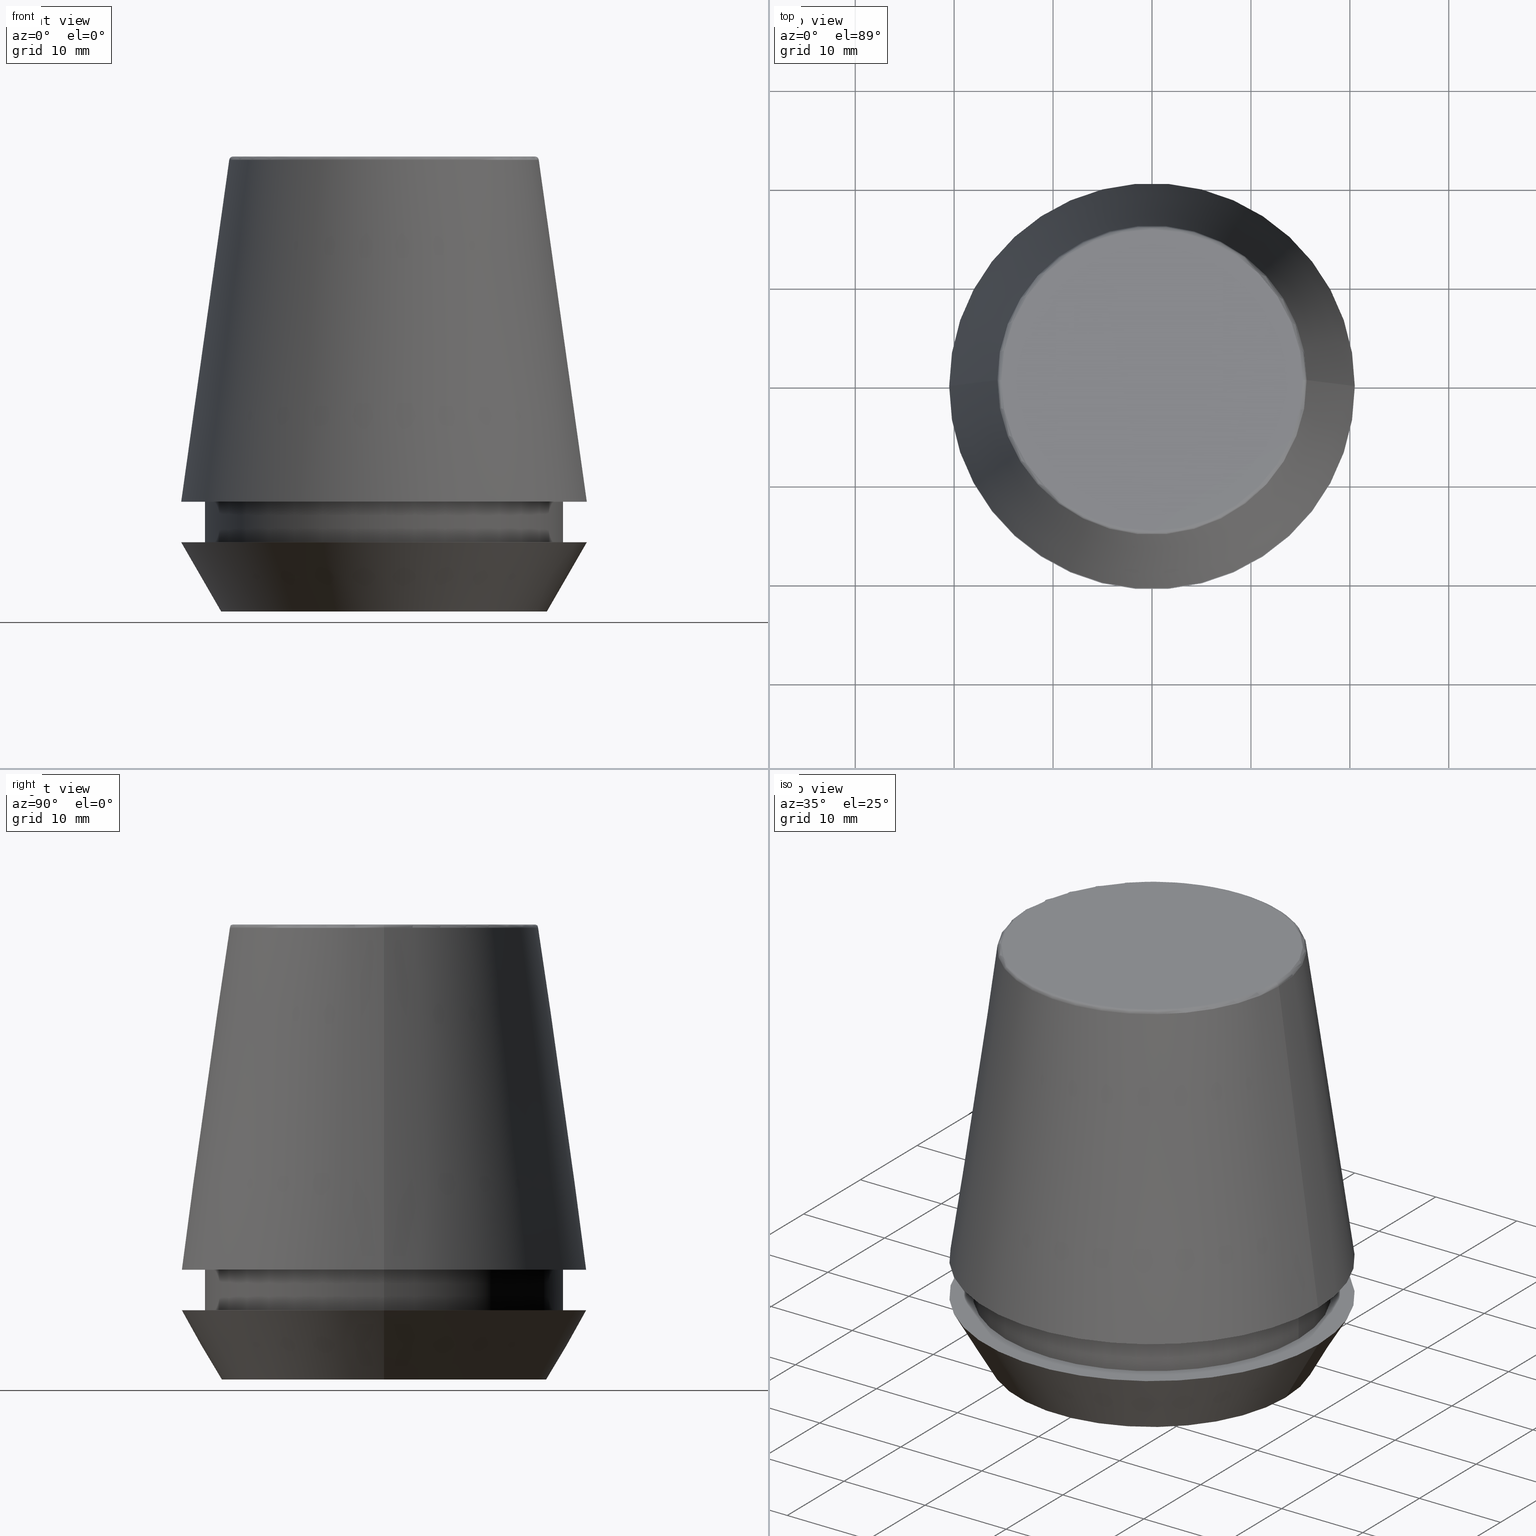
[diagram: canonical four-view strip — front | top / right | iso, engineering-drawing reading convention]
A machine part, canonical four-view strip (front | top / right | iso — engineering-drawing reading convention). The complete STEP part file that produces these views, byte-faithful:
ISO-10303-21;
HEADER;
FILE_DESCRIPTION (( 'STEP AP203' ),
    '1' );
FILE_NAME ('TAP COLLET ER 40G 6.3 X 5.0.STEP',
    '2019-04-10T03:25:51',
    ( '' ),
    ( '' ),
    'SwSTEP 2.0',
    'SolidWorks 2014',
    '' );
FILE_SCHEMA (( 'CONFIG_CONTROL_DESIGN' ));
ENDSEC;

DATA;
#1 = ORIENTED_EDGE ( 'NONE', *, *, #286, .T. ) ;
#2 = CARTESIAN_POINT ( 'NONE',  ( -15.64384277279740400, 0.0000000000000000000, 45.65566924038402900 ) ) ;
#3 = ORIENTED_EDGE ( 'NONE', *, *, #72, .T. ) ;
#4 = EDGE_LOOP ( 'NONE', ( #361, #256 ) ) ;
#5 = CIRCLE ( 'NONE', #306, 0.3999999999999975800 ) ;
#6 = CARTESIAN_POINT ( 'NONE',  ( -18.10000000000000500, 2.216610706456710000E-015, 11.09999999999999800 ) ) ;
#7 = CIRCLE ( 'NONE', #67, 18.10000000000000500 ) ;
#8 = CONICAL_SURFACE ( 'NONE', #11, 20.50032537154048700, 0.1396263401595396200 ) ;
#9 = CIRCLE ( 'NONE', #41, 16.45854811567268100 ) ;
#10 = ORIENTED_EDGE ( 'NONE', *, *, #141, .F. ) ;
#11 = AXIS2_PLACEMENT_3D ( 'NONE', #25, #240, #384 ) ;
#12 = VERTEX_POINT ( 'NONE', #321 ) ;
#13 = ORIENTED_EDGE ( 'NONE', *, *, #161, .T. ) ;
#14 = PRODUCT_RELATED_PRODUCT_CATEGORY ( 'detail', '', ( #124 ) ) ;
#15 = ORIENTED_EDGE ( 'NONE', *, *, #278, .T. ) ;
#16 = CARTESIAN_POINT ( 'NONE',  ( 0.0000000000000000000, 0.0000000000000000000, 11.09999999999999800 ) ) ;
#17 = ORIENTED_EDGE ( 'NONE', *, *, #122, .T. ) ;
#18 = ADVANCED_FACE ( 'NONE', ( #305 ), #185, .F. ) ;
#19 = CARTESIAN_POINT ( 'NONE',  ( 0.0000000000000000000, 0.0000000000000000000, 11.09999999999999800 ) ) ;
#20 = DIRECTION ( 'NONE',  ( 1.000000000000000000, 0.0000000000000000000, 0.0000000000000000000 ) ) ;
#21 = EDGE_CURVE ( 'NONE', #239, #330, #156, .T. ) ;
#22 = VERTEX_POINT ( 'NONE', #147 ) ;
#23 = CARTESIAN_POINT ( 'NONE',  ( 0.0000000000000000000, 0.0000000000000000000, 46.00000000000000000 ) ) ;
#24 = AXIS2_PLACEMENT_3D ( 'NONE', #169, #193, #275 ) ;
#25 = CARTESIAN_POINT ( 'NONE',  ( 0.0000000000000000000, 0.0000000000000000000, 11.09999999999999800 ) ) ;
#26 = PERSON_AND_ORGANIZATION_ROLE ( 'classification_officer' ) ;
#27 = DIRECTION ( 'NONE',  ( 1.000000000000000000, 0.0000000000000000000, 0.0000000000000000000 ) ) ;
#28 = CIRCLE ( 'NONE', #308, 20.50000000000000000 ) ;
#29 = PERSON_AND_ORGANIZATION_ROLE ( 'design_owner' ) ;
#30 = APPROVAL_PERSON_ORGANIZATION ( #377, #215, #271 ) ;
#31 = DIRECTION ( 'NONE',  ( 1.000000000000000000, 0.0000000000000000000, 0.0000000000000000000 ) ) ;
#32 = CONICAL_SURFACE ( 'NONE', #83, 20.50032537154048700, 0.1396263401595396200 ) ;
#33 = DIRECTION ( 'NONE',  ( 1.000000000000000000, 0.0000000000000000000, 0.0000000000000000000 ) ) ;
#34 = FACE_OUTER_BOUND ( 'NONE', #192, .T. ) ;
#35 = VERTEX_POINT ( 'NONE', #317 ) ;
#36 = ORIENTED_EDGE ( 'NONE', *, *, #108, .F. ) ;
#37 = AXIS2_PLACEMENT_3D ( 'NONE', #56, #244, #27 ) ;
#38 = CIRCLE ( 'NONE', #111, 20.50032537154048700 ) ;
#39 = ORIENTED_EDGE ( 'NONE', *, *, #122, .F. ) ;
#40 = CARTESIAN_POINT ( 'NONE',  ( 0.0000000000000000000, 20.50000000000000000, 7.000000000000002700 ) ) ;
#41 = AXIS2_PLACEMENT_3D ( 'NONE', #198, #379, #238 ) ;
#42 = ORIENTED_EDGE ( 'NONE', *, *, #199, .T. ) ;
#43 = ORIENTED_EDGE ( 'NONE', *, *, #199, .F. ) ;
#44 = CARTESIAN_POINT ( 'NONE',  ( 16.45854811567268100, 0.0000000000000000000, 0.0000000000000000000 ) ) ;
#45 = VECTOR ( 'NONE', #299, 1000.000000000000000 ) ;
#46 = ADVANCED_FACE ( 'NONE', ( #349, #88 ), #94, .F. ) ;
#47 = DIRECTION ( 'NONE',  ( 1.000000000000000000, 0.0000000000000000000, 0.0000000000000000000 ) ) ;
#48 = EDGE_CURVE ( 'NONE', #232, #12, #282, .T. ) ;
#49 = DIRECTION ( 'NONE',  ( 1.000000000000000000, 0.0000000000000000000, 0.0000000000000000000 ) ) ;
#50 = PERSON_AND_ORGANIZATION ( #71, #378 ) ;
#51 = VERTEX_POINT ( 'NONE', #6 ) ;
#52 = DIRECTION ( 'NONE',  ( 0.0000000000000000000, -1.000000000000000000, 0.0000000000000000000 ) ) ;
#53 = AXIS2_PLACEMENT_3D ( 'NONE', #336, #118, #312 ) ;
#54 = ORIENTED_EDGE ( 'NONE', *, *, #108, .T. ) ;
#55 = PERSON_AND_ORGANIZATION_ROLE ( 'design_supplier' ) ;
#56 = CARTESIAN_POINT ( 'NONE',  ( 0.0000000000000000000, 0.0000000000000000000, 45.65566924038402900 ) ) ;
#57 = UNCERTAINTY_MEASURE_WITH_UNIT (LENGTH_MEASURE( 1.000000000000000100E-005 ), #112, 'distance_accuracy_value', 'NONE');
#58 = CARTESIAN_POINT ( 'NONE',  ( 0.0000000000000000000, 0.0000000000000000000, 45.60000000000000100 ) ) ;
#59 = CARTESIAN_POINT ( 'NONE',  ( 0.0000000000000000000, 0.0000000000000000000, 7.000000000000006200 ) ) ;
#60 = CIRCLE ( 'NONE', #236, 18.10000000000000100 ) ;
#61 = DIRECTION ( 'NONE',  ( -0.0000000000000000000, -0.0000000000000000000, 1.000000000000000000 ) ) ;
#62 = CIRCLE ( 'NONE', #221, 16.45854811567268100 ) ;
#63 = AXIS2_PLACEMENT_3D ( 'NONE', #59, #248, #33 ) ;
#64 = CIRCLE ( 'NONE', #165, 0.3999999999999975800 ) ;
#65 = VERTEX_POINT ( 'NONE', #100 ) ;
#66 = DIRECTION ( 'NONE',  ( 0.0000000000000000000, -0.0000000000000000000, 1.000000000000000000 ) ) ;
#67 = AXIS2_PLACEMENT_3D ( 'NONE', #337, #119, #315 ) ;
#68 = COORDINATED_UNIVERSAL_TIME_OFFSET ( 5, 30, .AHEAD. ) ;
#69 = CALENDAR_DATE ( 2019, 10, 4 ) ;
#70 = AXIS2_PLACEMENT_3D ( 'NONE', #106, #381, #276 ) ;
#71 = PERSON ( 'UNSPECIFIED', 'UNSPECIFIED', 'UNSPECIFIED', ('UNSPECIFIED'), ('UNSPECIFIED'), ('UNSPECIFIED') ) ;
#72 = EDGE_CURVE ( 'NONE', #12, #211, #38, .T. ) ;
#73 = DIRECTION ( 'NONE',  ( -0.0000000000000000000, -0.0000000000000000000, 1.000000000000000000 ) ) ;
#74 = ADVANCED_FACE ( 'NONE', ( #304 ), #179, .T. ) ;
#75 = CARTESIAN_POINT ( 'NONE',  ( 0.0000000000000000000, 0.0000000000000000000, 45.60000000000000100 ) ) ;
#76 = APPROVAL_PERSON_ORGANIZATION ( #77, #189, #139 ) ;
#77 = PERSON_AND_ORGANIZATION ( #71, #378 ) ;
#78 = LOCAL_TIME ( 8, 55, 51.00000000000000000, #68 ) ;
#79 = AXIS2_PLACEMENT_3D ( 'NONE', #340, #120, #178 ) ;
#80 = COORDINATED_UNIVERSAL_TIME_OFFSET ( 5, 30, .AHEAD. ) ;
#81 =( NAMED_UNIT ( * ) SI_UNIT ( $, .STERADIAN. ) SOLID_ANGLE_UNIT ( ) );
#82 = COORDINATED_UNIVERSAL_TIME_OFFSET ( 5, 30, .AHEAD. ) ;
#83 = AXIS2_PLACEMENT_3D ( 'NONE', #16, #197, #300 ) ;
#84 = ORIENTED_EDGE ( 'NONE', *, *, #303, .T. ) ;
#85 = DIRECTION ( 'NONE',  ( -0.0000000000000000000, -0.0000000000000000000, 1.000000000000000000 ) ) ;
#86 = DIRECTION ( 'NONE',  ( -0.0000000000000000000, -0.0000000000000000000, 1.000000000000000000 ) ) ;
#87 = APPROVAL_ROLE ( '' ) ;
#88 = FACE_OUTER_BOUND ( 'NONE', #219, .T. ) ;
#89 = CARTESIAN_POINT ( 'NONE',  ( 18.10000000000000100, 0.0000000000000000000, 6.999999999999999100 ) ) ;
#90 = CALENDAR_DATE ( 2019, 10, 4 ) ;
#91 = EDGE_CURVE ( 'NONE', #51, #175, #7, .T. ) ;
#92 = SHAPE_DEFINITION_REPRESENTATION ( #97, #375 ) ;
#93 = APPROVAL_DATE_TIME ( #102, #215 ) ;
#94 = PLANE ( 'NONE',  #98 ) ;
#95 = ORIENTED_EDGE ( 'NONE', *, *, #103, .T. ) ;
#96 = PERSON_AND_ORGANIZATION ( #71, #378 ) ;
#97 = PRODUCT_DEFINITION_SHAPE ( 'NONE', 'NONE',  #320 ) ;
#98 = AXIS2_PLACEMENT_3D ( 'NONE', #40, #253, #290 ) ;
#99 = LOCAL_TIME ( 8, 55, 51.00000000000000000, #82 ) ;
#100 = CARTESIAN_POINT ( 'NONE',  ( -15.24773554530077600, 1.891563625393435400E-015, 46.00000000000000000 ) ) ;
#101 = LINE ( 'NONE', #285, #284 ) ;
#102 = DATE_AND_TIME ( #90, #386 ) ;
#103 = EDGE_CURVE ( 'NONE', #35, #330, #351, .T. ) ;
#104 = PERSON_AND_ORGANIZATION ( #71, #378 ) ;
#105 = CARTESIAN_POINT ( 'NONE',  ( -16.45854811567268100, 2.015590826847124800E-015, 0.0000000000000000000 ) ) ;
#106 = CARTESIAN_POINT ( 'NONE',  ( 0.0000000000000000000, 0.0000000000000000000, 46.00000000000000000 ) ) ;
#107 = CLOSED_SHELL ( 'NONE', ( #157, #228, #279, #74, #18, #338, #46, #322, #258, #352, #323, #196 ) ) ;
#108 = EDGE_CURVE ( 'NONE', #176, #175, #101, .T. ) ;
#109 = CARTESIAN_POINT ( 'NONE',  ( 20.50000000000000000, 0.0000000000000000000, 7.000000000000006200 ) ) ;
#110 = CARTESIAN_POINT ( 'NONE',  ( -15.24773554530077600, 1.867309052979791600E-015, 45.60000000000000100 ) ) ;
#111 = AXIS2_PLACEMENT_3D ( 'NONE', #287, #61, #252 ) ;
#112 =( LENGTH_UNIT ( ) NAMED_UNIT ( * ) SI_UNIT ( .MILLI., .METRE. ) );
#113 = AXIS2_PLACEMENT_3D ( 'NONE', #261, #66, #346 ) ;
#114 = EDGE_LOOP ( 'NONE', ( #288, #222, #152, #260 ) ) ;
#115 = DATE_TIME_ROLE ( 'creation_date' ) ;
#116 = APPROVAL_DATE_TIME ( #186, #189 ) ;
#117 = CC_DESIGN_PERSON_AND_ORGANIZATION_ASSIGNMENT ( #104, #26, ( #162 ) ) ;
#118 = DIRECTION ( 'NONE',  ( -0.0000000000000000000, -0.0000000000000000000, 1.000000000000000000 ) ) ;
#119 = DIRECTION ( 'NONE',  ( -0.0000000000000000000, -0.0000000000000000000, 1.000000000000000000 ) ) ;
#120 = DIRECTION ( 'NONE',  ( -0.0000000000000000000, -0.0000000000000000000, 1.000000000000000000 ) ) ;
#121 = DIRECTION ( 'NONE',  ( 0.4999999999999941700, 0.0000000000000000000, 0.8660254037844420400 ) ) ;
#122 = EDGE_CURVE ( 'NONE', #65, #22, #262, .T. ) ;
#123 = EDGE_LOOP ( 'NONE', ( #357, #266, #3, #298 ) ) ;
#124 = PRODUCT ( 'TAP COLLET ER 40G 6.3 X 5.0', 'TAP COLLET ER 40G 6.3 X 5.0', '', ( #174 ) ) ;
#125 = PERSON_AND_ORGANIZATION ( #71, #378 ) ;
#126 = CYLINDRICAL_SURFACE ( 'NONE', #296, 18.10000000000000500 ) ;
#127 = VERTEX_POINT ( 'NONE', #2 ) ;
#128 = CARTESIAN_POINT ( 'NONE',  ( 0.0000000000000000000, 0.0000000000000000000, 6.999999999999999100 ) ) ;
#129 = DIRECTION ( 'NONE',  ( 1.000000000000000000, 0.0000000000000000000, 0.0000000000000000000 ) ) ;
#130 = CYLINDRICAL_SURFACE ( 'NONE', #242, 18.10000000000000500 ) ;
#131 = DIRECTION ( 'NONE',  ( 0.0000000000000000000, 0.0000000000000000000, 1.000000000000000000 ) ) ;
#132 = LINE ( 'NONE', #105, #45 ) ;
#133 = TOROIDAL_SURFACE ( 'NONE', #318, 15.24773554530077600, 0.3999999999999991900 ) ;
#134 = CARTESIAN_POINT ( 'NONE',  ( 0.0000000000000000000, 0.0000000000000000000, 46.00000000000000000 ) ) ;
#135 = LOCAL_TIME ( 8, 55, 51.00000000000000000, #80 ) ;
#136 = APPROVAL_DATE_TIME ( #212, #209 ) ;
#137 = DIRECTION ( 'NONE',  ( -0.0000000000000000000, -0.0000000000000000000, 1.000000000000000000 ) ) ;
#138 = ORIENTED_EDGE ( 'NONE', *, *, #234, .T. ) ;
#139 = APPROVAL_ROLE ( '' ) ;
#140 = DIRECTION ( 'NONE',  ( -0.1391731009600587200, 0.0000000000000000000, -0.9902680687415712500 ) ) ;
#141 = EDGE_CURVE ( 'NONE', #202, #51, #187, .T. ) ;
#142 = LOCAL_TIME ( 8, 55, 51.00000000000000000, #184 ) ;
#143 = DIRECTION ( 'NONE',  ( -0.0000000000000000000, -0.0000000000000000000, 1.000000000000000000 ) ) ;
#144 = DIRECTION ( 'NONE',  ( 0.1391731009600587200, 1.704378926181473400E-017, -0.9902680687415712500 ) ) ;
#145 = AXIS2_PLACEMENT_3D ( 'NONE', #310, #86, #280 ) ;
#146 = PRODUCT_DEFINITION_FORMATION_WITH_SPECIFIED_SOURCE ( 'ANY', '', #124, .NOT_KNOWN. ) ;
#147 = CARTESIAN_POINT ( 'NONE',  ( 15.24773554530077600, 0.0000000000000000000, 46.00000000000000000 ) ) ;
#148 = DATE_AND_TIME ( #69, #99 ) ;
#149 = COORDINATED_UNIVERSAL_TIME_OFFSET ( 5, 30, .AHEAD. ) ;
#150 = PERSON_AND_ORGANIZATION ( #71, #378 ) ;
#151 = ORIENTED_EDGE ( 'NONE', *, *, #355, .T. ) ;
#152 = ORIENTED_EDGE ( 'NONE', *, *, #234, .F. ) ;
#153 = FACE_OUTER_BOUND ( 'NONE', #247, .T. ) ;
#154 = CC_DESIGN_DATE_AND_TIME_ASSIGNMENT ( #295, #115, ( #320 ) ) ;
#155 = CARTESIAN_POINT ( 'NONE',  ( 15.64384277279740400, 2.213191991290356800E-015, 45.65566924038402900 ) ) ;
#156 = LINE ( 'NONE', #343, #250 ) ;
#157 = ADVANCED_FACE ( 'NONE', ( #195 ), #263, .T. ) ;
#158 = DIRECTION ( 'NONE',  ( 1.000000000000000000, 0.0000000000000000000, 0.0000000000000000000 ) ) ;
#159 = CALENDAR_DATE ( 2019, 10, 4 ) ;
#160 = DATE_TIME_ROLE ( 'classification_date' ) ;
#161 = EDGE_CURVE ( 'NONE', #127, #211, #348, .T. ) ;
#162 = SECURITY_CLASSIFICATION ( '', '', #385 ) ;
#163 = DIRECTION ( 'NONE',  ( -1.000000000000000000, 1.224646799147353900E-016, 0.0000000000000000000 ) ) ;
#164 = EDGE_LOOP ( 'NONE', ( #231, #43, #13, #84 ) ) ;
#165 = AXIS2_PLACEMENT_3D ( 'NONE', #110, #233, #163 ) ;
#166 = DIRECTION ( 'NONE',  ( 0.0000000000000000000, 0.0000000000000000000, -1.000000000000000000 ) ) ;
#167 = CALENDAR_DATE ( 2019, 10, 4 ) ;
#168 = APPROVAL_PERSON_ORGANIZATION ( #125, #209, #87 ) ;
#169 = CARTESIAN_POINT ( 'NONE',  ( 0.0000000000000000000, 0.0000000000000000000, 11.09999999999999800 ) ) ;
#170 = ORIENTED_EDGE ( 'NONE', *, *, #21, .F. ) ;
#171 = CARTESIAN_POINT ( 'NONE',  ( 0.0000000000000000000, 0.0000000000000000000, 6.999999999999999100 ) ) ;
#172 = CC_DESIGN_PERSON_AND_ORGANIZATION_ASSIGNMENT ( #50, #55, ( #146 ) ) ;
#173 = CARTESIAN_POINT ( 'NONE',  ( -16.45854811567268100, 2.263058382549599700E-015, 0.0000000000000000000 ) ) ;
#174 = MECHANICAL_CONTEXT ( 'NONE', #277, 'mechanical' ) ;
#175 = VERTEX_POINT ( 'NONE', #335 ) ;
#176 = VERTEX_POINT ( 'NONE', #89 ) ;
#177 = PLANE ( 'NONE',  #332 ) ;
#178 = DIRECTION ( 'NONE',  ( 1.000000000000000000, 0.0000000000000000000, 0.0000000000000000000 ) ) ;
#179 = CONICAL_SURFACE ( 'NONE', #79, 16.45854811567268100, 0.5235987755982921500 ) ;
#180 = CALENDAR_DATE ( 2019, 10, 4 ) ;
#181 = CC_DESIGN_PERSON_AND_ORGANIZATION_ASSIGNMENT ( #96, #281, ( #146 ) ) ;
#182 = ORIENTED_EDGE ( 'NONE', *, *, #91, .T. ) ;
#183 = EDGE_LOOP ( 'NONE', ( #294, #368, #259, #36 ) ) ;
#184 = COORDINATED_UNIVERSAL_TIME_OFFSET ( 5, 30, .AHEAD. ) ;
#185 = PLANE ( 'NONE',  #113 ) ;
#186 = DATE_AND_TIME ( #159, #78 ) ;
#187 = LINE ( 'NONE', #365, #218 ) ;
#188 = EDGE_CURVE ( 'NONE', #232, #127, #367, .T. ) ;
#189 = APPROVAL ( #363, 'UNSPECIFIED' ) ;
#190 = FACE_OUTER_BOUND ( 'NONE', #237, .T. ) ;
#191 =( GEOMETRIC_REPRESENTATION_CONTEXT ( 3 ) GLOBAL_UNCERTAINTY_ASSIGNED_CONTEXT ( ( #57 ) ) GLOBAL_UNIT_ASSIGNED_CONTEXT ( ( #112, #360, #81 ) ) REPRESENTATION_CONTEXT ( 'NONE', 'WORKASPACE' ) );
#192 = EDGE_LOOP ( 'NONE', ( #241, #42, #255, #39 ) ) ;
#193 = DIRECTION ( 'NONE',  ( -0.0000000000000000000, -0.0000000000000000000, 1.000000000000000000 ) ) ;
#194 = CARTESIAN_POINT ( 'NONE',  ( 0.0000000000000000000, 20.50032537154048700, 11.09999999999999800 ) ) ;
#195 = FACE_OUTER_BOUND ( 'NONE', #114, .T. ) ;
#196 = ADVANCED_FACE ( 'NONE', ( #273 ), #177, .F. ) ;
#197 = DIRECTION ( 'NONE',  ( 0.0000000000000000000, 0.0000000000000000000, -1.000000000000000000 ) ) ;
#198 = CARTESIAN_POINT ( 'NONE',  ( 0.0000000000000000000, 0.0000000000000000000, 0.0000000000000000000 ) ) ;
#199 = EDGE_CURVE ( 'NONE', #127, #232, #344, .T. ) ;
#200 = CARTESIAN_POINT ( 'NONE',  ( 15.24773554530077600, 0.0000000000000000000, 45.60000000000000100 ) ) ;
#201 = DIRECTION ( 'NONE',  ( 1.000000000000000000, 0.0000000000000000000, 0.0000000000000000000 ) ) ;
#202 = VERTEX_POINT ( 'NONE', #331 ) ;
#203 = DIRECTION ( 'NONE',  ( 0.0000000000000000000, 0.0000000000000000000, -1.000000000000000000 ) ) ;
#204 = DIRECTION ( 'NONE',  ( 1.000000000000000000, 0.0000000000000000000, 0.0000000000000000000 ) ) ;
#205 = ORIENTED_EDGE ( 'NONE', *, *, #270, .F. ) ;
#206 = EDGE_LOOP ( 'NONE', ( #291, #227 ) ) ;
#207 = CARTESIAN_POINT ( 'NONE',  ( 0.0000000000000000000, 15.24773554530077600, 46.00000000000000000 ) ) ;
#208 = DIRECTION ( 'NONE',  ( -0.0000000000000000000, -0.0000000000000000000, 1.000000000000000000 ) ) ;
#209 = APPROVAL ( #311, 'UNSPECIFIED' ) ;
#210 = FACE_OUTER_BOUND ( 'NONE', #183, .T. ) ;
#211 = VERTEX_POINT ( 'NONE', #362 ) ;
#212 = DATE_AND_TIME ( #167, #135 ) ;
#213 = AXIS2_PLACEMENT_3D ( 'NONE', #194, #354, #129 ) ;
#214 = VERTEX_POINT ( 'NONE', #173 ) ;
#215 = APPROVAL ( #347, 'UNSPECIFIED' ) ;
#216 = ORIENTED_EDGE ( 'NONE', *, *, #103, .F. ) ;
#217 = FACE_OUTER_BOUND ( 'NONE', #226, .T. ) ;
#218 = VECTOR ( 'NONE', #283, 1000.000000000000000 ) ;
#219 = EDGE_LOOP ( 'NONE', ( #269, #95 ) ) ;
#220 = EDGE_CURVE ( 'NONE', #176, #202, #224, .T. ) ;
#221 = AXIS2_PLACEMENT_3D ( 'NONE', #235, #356, #307 ) ;
#222 = ORIENTED_EDGE ( 'NONE', *, *, #339, .T. ) ;
#223 = EDGE_LOOP ( 'NONE', ( #138, #17 ) ) ;
#224 = CIRCLE ( 'NONE', #373, 18.10000000000000100 ) ;
#225 = AXIS2_PLACEMENT_3D ( 'NONE', #380, #131, #204 ) ;
#226 = EDGE_LOOP ( 'NONE', ( #249, #151, #359, #216 ) ) ;
#227 = ORIENTED_EDGE ( 'NONE', *, *, #286, .F. ) ;
#228 = ADVANCED_FACE ( 'NONE', ( #314 ), #8, .T. ) ;
#229 = DIRECTION ( 'NONE',  ( -0.0000000000000000000, -0.0000000000000000000, 1.000000000000000000 ) ) ;
#230 = DIRECTION ( 'NONE',  ( -0.0000000000000000000, -0.0000000000000000000, 1.000000000000000000 ) ) ;
#231 = ORIENTED_EDGE ( 'NONE', *, *, #48, .F. ) ;
#232 = VERTEX_POINT ( 'NONE', #155 ) ;
#233 = DIRECTION ( 'NONE',  ( 1.224646799147353200E-016, 1.000000000000000000, 0.0000000000000000000 ) ) ;
#234 = EDGE_CURVE ( 'NONE', #22, #65, #383, .T. ) ;
#235 = CARTESIAN_POINT ( 'NONE',  ( 0.0000000000000000000, 0.0000000000000000000, 0.0000000000000000000 ) ) ;
#236 = AXIS2_PLACEMENT_3D ( 'NONE', #128, #353, #158 ) ;
#237 = EDGE_LOOP ( 'NONE', ( #297, #292 ) ) ;
#238 = DIRECTION ( 'NONE',  ( 1.000000000000000000, 0.0000000000000000000, 0.0000000000000000000 ) ) ;
#239 = VERTEX_POINT ( 'NONE', #44 ) ;
#240 = DIRECTION ( 'NONE',  ( 0.0000000000000000000, 0.0000000000000000000, -1.000000000000000000 ) ) ;
#241 = ORIENTED_EDGE ( 'NONE', *, *, #339, .F. ) ;
#242 = AXIS2_PLACEMENT_3D ( 'NONE', #23, #85, #326 ) ;
#243 = APPLICATION_PROTOCOL_DEFINITION ( 'international standard', 'config_control_design', 1994, #309 ) ;
#244 = DIRECTION ( 'NONE',  ( -0.0000000000000000000, -0.0000000000000000000, 1.000000000000000000 ) ) ;
#245 = APPLICATION_PROTOCOL_DEFINITION ( 'international standard', 'config_control_design', 1994, #277 ) ;
#246 = ORIENTED_EDGE ( 'NONE', *, *, #264, .T. ) ;
#247 = EDGE_LOOP ( 'NONE', ( #10, #1, #54, #274 ) ) ;
#248 = DIRECTION ( 'NONE',  ( -0.0000000000000000000, -0.0000000000000000000, 1.000000000000000000 ) ) ;
#249 = ORIENTED_EDGE ( 'NONE', *, *, #329, .F. ) ;
#250 = VECTOR ( 'NONE', #121, 1000.000000000000000 ) ;
#251 = EDGE_LOOP ( 'NONE', ( #246, #267, #205, #170 ) ) ;
#252 = DIRECTION ( 'NONE',  ( 1.000000000000000000, 0.0000000000000000000, 0.0000000000000000000 ) ) ;
#253 = DIRECTION ( 'NONE',  ( 0.0000000000000000000, 0.0000000000000000000, -1.000000000000000000 ) ) ;
#254 = CONICAL_SURFACE ( 'NONE', #289, 16.45854811567268100, 0.5235987755982921500 ) ;
#255 = ORIENTED_EDGE ( 'NONE', *, *, #371, .T. ) ;
#256 = ORIENTED_EDGE ( 'NONE', *, *, #355, .F. ) ;
#257 = CC_DESIGN_SECURITY_CLASSIFICATION ( #162, ( #146 ) ) ;
#258 = ADVANCED_FACE ( 'NONE', ( #190, #328 ), #302, .F. ) ;
#259 = ORIENTED_EDGE ( 'NONE', *, *, #278, .F. ) ;
#260 = ORIENTED_EDGE ( 'NONE', *, *, #371, .F. ) ;
#261 = CARTESIAN_POINT ( 'NONE',  ( 0.0000000000000000000, 0.0000000000000000000, 0.0000000000000000000 ) ) ;
#262 = CIRCLE ( 'NONE', #53, 15.24773554530077600 ) ;
#263 = TOROIDAL_SURFACE ( 'NONE', #341, 15.24773554530077600, 0.3999999999999991900 ) ;
#264 = EDGE_CURVE ( 'NONE', #239, #214, #9, .T. ) ;
#265 = CIRCLE ( 'NONE', #313, 20.50032537154048700 ) ;
#266 = ORIENTED_EDGE ( 'NONE', *, *, #48, .T. ) ;
#267 = ORIENTED_EDGE ( 'NONE', *, *, #329, .T. ) ;
#268 = DIRECTION ( 'NONE',  ( 1.000000000000000000, 0.0000000000000000000, 0.0000000000000000000 ) ) ;
#269 = ORIENTED_EDGE ( 'NONE', *, *, #270, .T. ) ;
#270 = EDGE_CURVE ( 'NONE', #330, #35, #28, .T. ) ;
#271 = APPROVAL_ROLE ( '' ) ;
#272 = MANIFOLD_SOLID_BREP ( 'Revolve1', #107 ) ;
#273 = FACE_OUTER_BOUND ( 'NONE', #223, .T. ) ;
#274 = ORIENTED_EDGE ( 'NONE', *, *, #91, .F. ) ;
#275 = DIRECTION ( 'NONE',  ( 1.000000000000000000, 0.0000000000000000000, 0.0000000000000000000 ) ) ;
#276 = DIRECTION ( 'NONE',  ( 1.000000000000000000, 0.0000000000000000000, 0.0000000000000000000 ) ) ;
#277 = APPLICATION_CONTEXT ( 'configuration controlled 3d designs of mechanical parts and assemblies' ) ;
#278 = EDGE_CURVE ( 'NONE', #175, #51, #382, .T. ) ;
#279 = ADVANCED_FACE ( 'NONE', ( #210 ), #130, .T. ) ;
#280 = DIRECTION ( 'NONE',  ( 1.000000000000000000, 0.0000000000000000000, 0.0000000000000000000 ) ) ;
#281 = PERSON_AND_ORGANIZATION_ROLE ( 'creator' ) ;
#282 = LINE ( 'NONE', #366, #372 ) ;
#283 = DIRECTION ( 'NONE',  ( -0.0000000000000000000, -0.0000000000000000000, 1.000000000000000000 ) ) ;
#284 = VECTOR ( 'NONE', #208, 1000.000000000000000 ) ;
#285 = CARTESIAN_POINT ( 'NONE',  ( 18.10000000000000500, 0.0000000000000000000, 46.00000000000000000 ) ) ;
#286 = EDGE_CURVE ( 'NONE', #202, #176, #60, .T. ) ;
#287 = CARTESIAN_POINT ( 'NONE',  ( 0.0000000000000000000, 0.0000000000000000000, 11.09999999999999800 ) ) ;
#288 = ORIENTED_EDGE ( 'NONE', *, *, #188, .T. ) ;
#289 = AXIS2_PLACEMENT_3D ( 'NONE', #301, #73, #47 ) ;
#290 = DIRECTION ( 'NONE',  ( -1.000000000000000000, 0.0000000000000000000, -0.0000000000000000000 ) ) ;
#291 = ORIENTED_EDGE ( 'NONE', *, *, #220, .F. ) ;
#292 = ORIENTED_EDGE ( 'NONE', *, *, #72, .F. ) ;
#293 = EDGE_LOOP ( 'NONE', ( #15, #182 ) ) ;
#294 = ORIENTED_EDGE ( 'NONE', *, *, #220, .T. ) ;
#295 = DATE_AND_TIME ( #180, #142 ) ;
#296 = AXIS2_PLACEMENT_3D ( 'NONE', #134, #376, #201 ) ;
#297 = ORIENTED_EDGE ( 'NONE', *, *, #303, .F. ) ;
#298 = ORIENTED_EDGE ( 'NONE', *, *, #161, .F. ) ;
#299 = DIRECTION ( 'NONE',  ( -0.4999999999999941700, 6.123233995736694500E-017, 0.8660254037844420400 ) ) ;
#300 = DIRECTION ( 'NONE',  ( -1.000000000000000000, 0.0000000000000000000, 0.0000000000000000000 ) ) ;
#301 = CARTESIAN_POINT ( 'NONE',  ( 0.0000000000000000000, 0.0000000000000000000, 0.0000000000000000000 ) ) ;
#302 = PLANE ( 'NONE',  #213 ) ;
#303 = EDGE_CURVE ( 'NONE', #211, #12, #265, .T. ) ;
#304 = FACE_OUTER_BOUND ( 'NONE', #251, .T. ) ;
#305 = FACE_OUTER_BOUND ( 'NONE', #4, .T. ) ;
#306 = AXIS2_PLACEMENT_3D ( 'NONE', #200, #52, #166 ) ;
#307 = DIRECTION ( 'NONE',  ( 1.000000000000000000, 0.0000000000000000000, 0.0000000000000000000 ) ) ;
#308 = AXIS2_PLACEMENT_3D ( 'NONE', #327, #137, #20 ) ;
#309 = APPLICATION_CONTEXT ( 'configuration controlled 3d designs of mechanical parts and assemblies' ) ;
#310 = CARTESIAN_POINT ( 'NONE',  ( 0.0000000000000000000, 0.0000000000000000000, 45.65566924038402900 ) ) ;
#311 = APPROVAL_STATUS ( 'not_yet_approved' ) ;
#312 = DIRECTION ( 'NONE',  ( 1.000000000000000000, 0.0000000000000000000, 0.0000000000000000000 ) ) ;
#313 = AXIS2_PLACEMENT_3D ( 'NONE', #19, #230, #49 ) ;
#314 = FACE_OUTER_BOUND ( 'NONE', #123, .T. ) ;
#315 = DIRECTION ( 'NONE',  ( 1.000000000000000000, 0.0000000000000000000, 0.0000000000000000000 ) ) ;
#316 = FACE_OUTER_BOUND ( 'NONE', #164, .T. ) ;
#317 = CARTESIAN_POINT ( 'NONE',  ( -20.50000000000000000, 2.510525938252074100E-015, 7.000000000000006200 ) ) ;
#318 = AXIS2_PLACEMENT_3D ( 'NONE', #75, #358, #325 ) ;
#319 = CC_DESIGN_PERSON_AND_ORGANIZATION_ASSIGNMENT ( #342, #29, ( #124 ) ) ;
#320 = PRODUCT_DEFINITION ( 'UNKNOWN', '', #146, #333 ) ;
#321 = CARTESIAN_POINT ( 'NONE',  ( 20.50032537154048700, 2.510565784773633700E-015, 11.09999999999999800 ) ) ;
#322 = ADVANCED_FACE ( 'NONE', ( #153 ), #126, .T. ) ;
#323 = ADVANCED_FACE ( 'NONE', ( #34 ), #133, .T. ) ;
#324 = CC_DESIGN_APPROVAL ( #209, ( #146 ) ) ;
#325 = DIRECTION ( 'NONE',  ( 1.000000000000000000, 0.0000000000000000000, 0.0000000000000000000 ) ) ;
#326 = DIRECTION ( 'NONE',  ( 1.000000000000000000, 0.0000000000000000000, 0.0000000000000000000 ) ) ;
#327 = CARTESIAN_POINT ( 'NONE',  ( 0.0000000000000000000, 0.0000000000000000000, 7.000000000000006200 ) ) ;
#328 = FACE_BOUND ( 'NONE', #293, .T. ) ;
#329 = EDGE_CURVE ( 'NONE', #214, #35, #132, .T. ) ;
#330 = VERTEX_POINT ( 'NONE', #109 ) ;
#331 = CARTESIAN_POINT ( 'NONE',  ( -18.10000000000000100, 2.216610706456709600E-015, 6.999999999999999100 ) ) ;
#332 = AXIS2_PLACEMENT_3D ( 'NONE', #207, #203, #387 ) ;
#333 = DESIGN_CONTEXT ( 'detailed design', #309, 'design' ) ;
#334 = PERSON_AND_ORGANIZATION_ROLE ( 'creator' ) ;
#335 = CARTESIAN_POINT ( 'NONE',  ( 18.10000000000000500, 0.0000000000000000000, 11.09999999999999800 ) ) ;
#336 = CARTESIAN_POINT ( 'NONE',  ( 0.0000000000000000000, 0.0000000000000000000, 46.00000000000000000 ) ) ;
#337 = CARTESIAN_POINT ( 'NONE',  ( 0.0000000000000000000, 0.0000000000000000000, 11.09999999999999800 ) ) ;
#338 = ADVANCED_FACE ( 'NONE', ( #217 ), #254, .T. ) ;
#339 = EDGE_CURVE ( 'NONE', #127, #65, #64, .T. ) ;
#340 = CARTESIAN_POINT ( 'NONE',  ( 0.0000000000000000000, 0.0000000000000000000, 0.0000000000000000000 ) ) ;
#341 = AXIS2_PLACEMENT_3D ( 'NONE', #58, #143, #31 ) ;
#342 = PERSON_AND_ORGANIZATION ( #71, #378 ) ;
#343 = CARTESIAN_POINT ( 'NONE',  ( 16.45854811567268100, 0.0000000000000000000, 0.0000000000000000000 ) ) ;
#344 = CIRCLE ( 'NONE', #145, 15.64384277279740400 ) ;
#345 = CC_DESIGN_APPROVAL ( #215, ( #162 ) ) ;
#346 = DIRECTION ( 'NONE',  ( 1.000000000000000000, 0.0000000000000000000, 0.0000000000000000000 ) ) ;
#347 = APPROVAL_STATUS ( 'not_yet_approved' ) ;
#348 = LINE ( 'NONE', #364, #370 ) ;
#349 = FACE_BOUND ( 'NONE', #206, .T. ) ;
#350 = CC_DESIGN_PERSON_AND_ORGANIZATION_ASSIGNMENT ( #150, #334, ( #320 ) ) ;
#351 = CIRCLE ( 'NONE', #63, 20.50000000000000000 ) ;
#352 = ADVANCED_FACE ( 'NONE', ( #316 ), #32, .T. ) ;
#353 = DIRECTION ( 'NONE',  ( -0.0000000000000000000, -0.0000000000000000000, 1.000000000000000000 ) ) ;
#354 = DIRECTION ( 'NONE',  ( 0.0000000000000000000, -0.0000000000000000000, 1.000000000000000000 ) ) ;
#355 = EDGE_CURVE ( 'NONE', #214, #239, #62, .T. ) ;
#356 = DIRECTION ( 'NONE',  ( -0.0000000000000000000, -0.0000000000000000000, 1.000000000000000000 ) ) ;
#357 = ORIENTED_EDGE ( 'NONE', *, *, #188, .F. ) ;
#358 = DIRECTION ( 'NONE',  ( -0.0000000000000000000, -0.0000000000000000000, 1.000000000000000000 ) ) ;
#359 = ORIENTED_EDGE ( 'NONE', *, *, #21, .T. ) ;
#360 =( NAMED_UNIT ( * ) PLANE_ANGLE_UNIT ( ) SI_UNIT ( $, .RADIAN. ) );
#361 = ORIENTED_EDGE ( 'NONE', *, *, #264, .F. ) ;
#362 = CARTESIAN_POINT ( 'NONE',  ( -20.50032537154048700, 0.0000000000000000000, 11.09999999999999800 ) ) ;
#363 = APPROVAL_STATUS ( 'not_yet_approved' ) ;
#364 = CARTESIAN_POINT ( 'NONE',  ( -20.50032537154048700, 0.0000000000000000000, 11.09999999999999800 ) ) ;
#365 = CARTESIAN_POINT ( 'NONE',  ( -18.10000000000000500, 2.216610706456710000E-015, 46.00000000000000000 ) ) ;
#366 = CARTESIAN_POINT ( 'NONE',  ( 20.50032537154048700, 2.510565784773633700E-015, 11.09999999999999800 ) ) ;
#367 = CIRCLE ( 'NONE', #37, 15.64384277279740400 ) ;
#368 = ORIENTED_EDGE ( 'NONE', *, *, #141, .T. ) ;
#369 = CC_DESIGN_APPROVAL ( #189, ( #320 ) ) ;
#370 = VECTOR ( 'NONE', #140, 1000.000000000000000 ) ;
#371 = EDGE_CURVE ( 'NONE', #232, #22, #5, .T. ) ;
#372 = VECTOR ( 'NONE', #144, 1000.000000000000000 ) ;
#373 = AXIS2_PLACEMENT_3D ( 'NONE', #171, #229, #268 ) ;
#374 = CC_DESIGN_DATE_AND_TIME_ASSIGNMENT ( #148, #160, ( #162 ) ) ;
#375 = ADVANCED_BREP_SHAPE_REPRESENTATION ( 'TAP COLLET ER 40G 6.3 X 5.0', ( #272, #225 ), #191 ) ;
#376 = DIRECTION ( 'NONE',  ( -0.0000000000000000000, -0.0000000000000000000, 1.000000000000000000 ) ) ;
#377 = PERSON_AND_ORGANIZATION ( #71, #378 ) ;
#378 = ORGANIZATION ( 'UNSPECIFIED', 'UNSPECIFIED', '' ) ;
#379 = DIRECTION ( 'NONE',  ( -0.0000000000000000000, -0.0000000000000000000, 1.000000000000000000 ) ) ;
#380 = CARTESIAN_POINT ( 'NONE',  ( 0.0000000000000000000, 0.0000000000000000000, 0.0000000000000000000 ) ) ;
#381 = DIRECTION ( 'NONE',  ( -0.0000000000000000000, -0.0000000000000000000, 1.000000000000000000 ) ) ;
#382 = CIRCLE ( 'NONE', #24, 18.10000000000000500 ) ;
#383 = CIRCLE ( 'NONE', #70, 15.24773554530077600 ) ;
#384 = DIRECTION ( 'NONE',  ( -1.000000000000000000, 0.0000000000000000000, 0.0000000000000000000 ) ) ;
#385 = SECURITY_CLASSIFICATION_LEVEL ( 'unclassified' ) ;
#386 = LOCAL_TIME ( 8, 55, 51.00000000000000000, #149 ) ;
#387 = DIRECTION ( 'NONE',  ( -1.000000000000000000, 0.0000000000000000000, -0.0000000000000000000 ) ) ;
ENDSEC;
END-ISO-10303-21;
